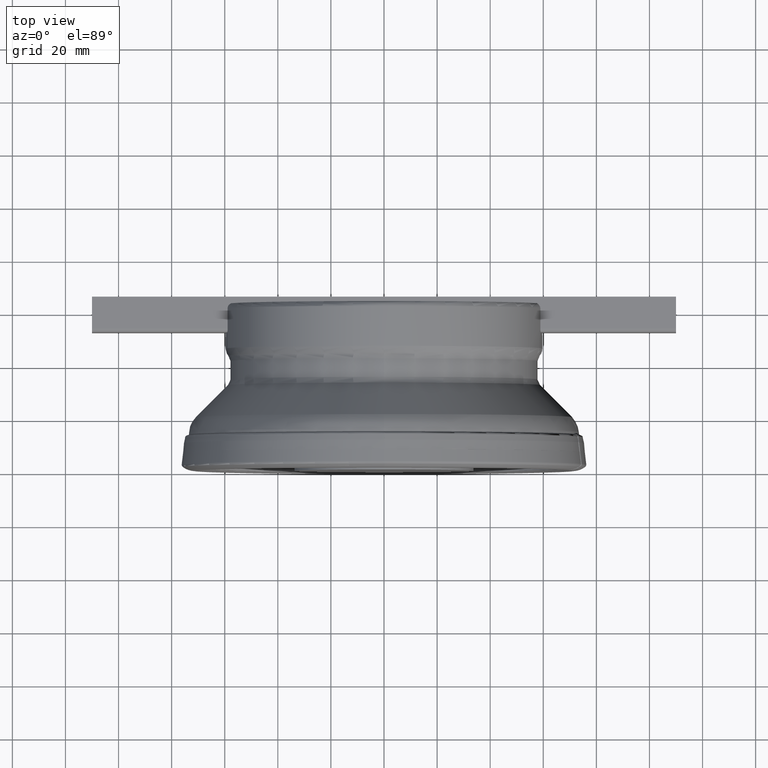
[diagram: clean part render]
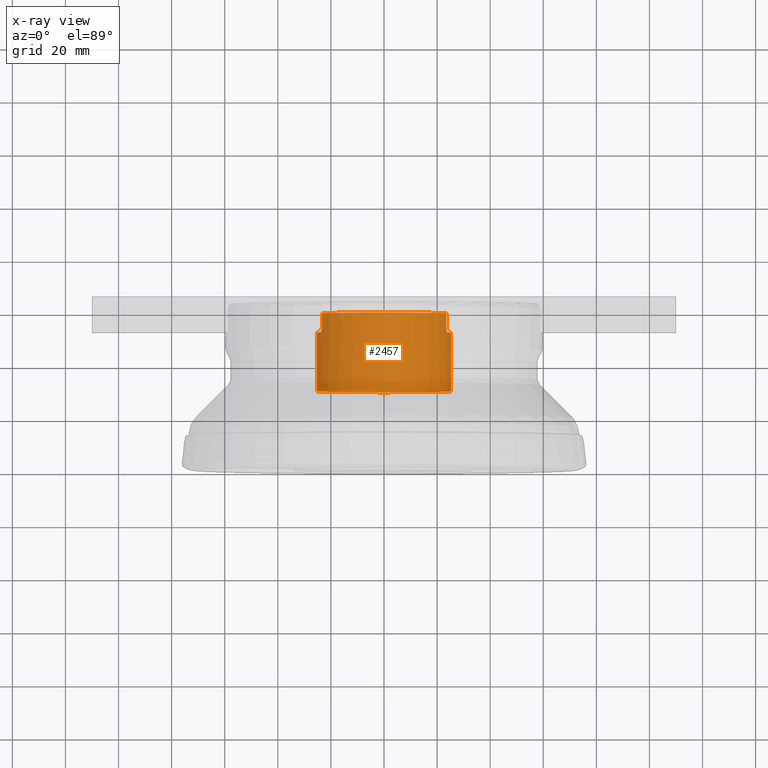
[diagram: x-ray — body ghosted, one internal face saturated and labeled with its STEP entity id]
A machine part, top view, then the same camera in x-ray: the body is ghosted and one INTERNAL B-rep face — a face not visible from any outside direction — is saturated and labeled: STEP entity #2457.
In plain terms, the highlighted cylindrical surface (bore or boss wall) has radius 25.4 mm, axis along (-0, -1, -0).
Its self-contained STEP definition (entity closure, byte-faithful):
#1074=CYLINDRICAL_SURFACE('',#7834,25.4);
#1684=B_SPLINE_CURVE_WITH_KNOTS('',3,(#19231,#19232,#19233,#19234,#19235,
#19236,#19237,#19238,#19239,#19240,#19241,#19242,#19243,#19244,#19245,#19246,
#19247,#19248,#19249),.UNSPECIFIED.,.F.,.F.,(4,3,3,3,3,3,4),(0.,0.0502275320667609,
0.279123687123025,0.511594614678657,0.737316029279921,0.947476441891119,
1.),.UNSPECIFIED.);
#1685=B_SPLINE_CURVE_WITH_KNOTS('',3,(#19253,#19254,#19255,#19256,#19257,
#19258,#19259,#19260,#19261,#19262,#19263,#19264,#19265,#19266,#19267,#19268),
 .UNSPECIFIED.,.F.,.F.,(4,3,3,3,3,4),(0.,0.196683322423464,0.392912196404661,
0.596015192634013,0.813684447285351,1.),.UNSPECIFIED.);
#1686=B_SPLINE_CURVE_WITH_KNOTS('',3,(#19276,#19277,#19278,#19279,#19280,
#19281,#19282,#19283,#19284,#19285,#19286,#19287,#19288,#19289,#19290,#19291),
 .UNSPECIFIED.,.F.,.F.,(4,3,3,3,3,4),(0.,0.202916160364507,0.435221775552951,
0.664508394608846,0.880332442874783,1.),.UNSPECIFIED.);
#1687=B_SPLINE_CURVE_WITH_KNOTS('',3,(#19295,#19296,#19297,#19298,#19299,
#19300,#19301,#19302,#19303,#19304,#19305,#19306,#19307,#19308,#19309,#19310,
#19311,#19312,#19313),.UNSPECIFIED.,.F.,.F.,(4,3,3,3,3,3,4),(0.,0.143666836012173,
0.336061270032126,0.535689817439991,0.74913076314681,0.975929588190963,
1.),.UNSPECIFIED.);
#1827=LINE('',#19229,#1984);
#1828=LINE('',#19270,#1985);
#1829=LINE('',#19274,#1986);
#1830=LINE('',#19315,#1987);
#1984=VECTOR('',#8979,1.);
#1985=VECTOR('',#8982,1.);
#1986=VECTOR('',#8985,1.);
#1987=VECTOR('',#8988,1.);
#2457=ADVANCED_FACE('',(#2679,#2680),#1074,.T.);
#2679=FACE_BOUND('',#3231,.T.);
#2680=FACE_BOUND('',#3232,.T.);
#3231=EDGE_LOOP('',(#5261));
#3232=EDGE_LOOP('',(#5262,#5263,#5264,#5265,#5266,#5267,#5268,#5269,#5270,
#5271,#5272,#5273));
#5261=ORIENTED_EDGE('',*,*,#7029,.F.);
#5262=ORIENTED_EDGE('',*,*,#7030,.T.);
#5263=ORIENTED_EDGE('',*,*,#7031,.T.);
#5264=ORIENTED_EDGE('',*,*,#7032,.F.);
#5265=ORIENTED_EDGE('',*,*,#7033,.T.);
#5266=ORIENTED_EDGE('',*,*,#7034,.F.);
#5267=ORIENTED_EDGE('',*,*,#7035,.T.);
#5268=ORIENTED_EDGE('',*,*,#7036,.T.);
#5269=ORIENTED_EDGE('',*,*,#7037,.T.);
#5270=ORIENTED_EDGE('',*,*,#7038,.F.);
#5271=ORIENTED_EDGE('',*,*,#7039,.T.);
#5272=ORIENTED_EDGE('',*,*,#7040,.F.);
#5273=ORIENTED_EDGE('',*,*,#7041,.T.);
#5995=VERTEX_POINT('',#19225);
#5996=VERTEX_POINT('',#19227);
#5997=VERTEX_POINT('',#19228);
#5998=VERTEX_POINT('',#19230);
#5999=VERTEX_POINT('',#19250);
#6000=VERTEX_POINT('',#19252);
#6001=VERTEX_POINT('',#19269);
#6002=VERTEX_POINT('',#19271);
#6003=VERTEX_POINT('',#19273);
#6004=VERTEX_POINT('',#19275);
#6005=VERTEX_POINT('',#19292);
#6006=VERTEX_POINT('',#19294);
#6007=VERTEX_POINT('',#19314);
#7029=EDGE_CURVE('',#5995,#5995,#7339,.T.);
#7030=EDGE_CURVE('',#5996,#5997,#7340,.T.);
#7031=EDGE_CURVE('',#5997,#5998,#1827,.T.);
#7032=EDGE_CURVE('',#5999,#5998,#1684,.T.);
#7033=EDGE_CURVE('',#5999,#6000,#7341,.T.);
#7034=EDGE_CURVE('',#6001,#6000,#1685,.T.);
#7035=EDGE_CURVE('',#6001,#6002,#1828,.T.);
#7036=EDGE_CURVE('',#6002,#6003,#7342,.T.);
#7037=EDGE_CURVE('',#6003,#6004,#1829,.T.);
#7038=EDGE_CURVE('',#6005,#6004,#1686,.T.);
#7039=EDGE_CURVE('',#6005,#6006,#7343,.T.);
#7040=EDGE_CURVE('',#6007,#6006,#1687,.T.);
#7041=EDGE_CURVE('',#6007,#5996,#1830,.T.);
#7339=CIRCLE('',#7829,25.4);
#7340=CIRCLE('',#7830,25.4);
#7341=CIRCLE('',#7831,25.4);
#7342=CIRCLE('',#7832,25.4);
#7343=CIRCLE('',#7833,25.4);
#7829=AXIS2_PLACEMENT_3D('',#19224,#8975,#8976);
#7830=AXIS2_PLACEMENT_3D('',#19226,#8977,#8978);
#7831=AXIS2_PLACEMENT_3D('',#19251,#8980,#8981);
#7832=AXIS2_PLACEMENT_3D('',#19272,#8983,#8984);
#7833=AXIS2_PLACEMENT_3D('',#19293,#8986,#8987);
#7834=AXIS2_PLACEMENT_3D('',#19316,#8989,#8990);
#8975=DIRECTION('',(-1.,0.,0.));
#8976=DIRECTION('',(0.,0.,1.));
#8977=DIRECTION('',(-1.,0.,0.));
#8978=DIRECTION('',(0.,0.,1.));
#8979=DIRECTION('',(-1.,0.,0.));
#8980=DIRECTION('',(-1.,0.,0.));
#8981=DIRECTION('',(0.,0.,-1.));
#8982=DIRECTION('',(1.,0.,0.));
#8983=DIRECTION('',(-1.,0.,0.));
#8984=DIRECTION('',(0.,0.,1.));
#8985=DIRECTION('',(-1.,0.,0.));
#8986=DIRECTION('',(-1.,0.,0.));
#8987=DIRECTION('',(0.,0.,-1.));
#8988=DIRECTION('',(1.,0.,0.));
#8989=DIRECTION('',(-1.,0.,0.));
#8990=DIRECTION('',(0.,0.,1.));
#19224=CARTESIAN_POINT('',(30.002,0.,0.));
#19225=CARTESIAN_POINT('',(30.002,0.,25.4));
#19226=CARTESIAN_POINT('',(59.2,0.,0.));
#19227=CARTESIAN_POINT('',(59.2,23.4645344083363,-9.725));
#19228=CARTESIAN_POINT('',(59.2,-23.4645344083363,-9.725));
#19229=CARTESIAN_POINT('',(0.,-23.4645344083363,-9.725));
#19230=CARTESIAN_POINT('',(53.6,-23.4645344083363,-9.725));
#19231=CARTESIAN_POINT('',(52.,-24.0654186541602,-8.125));
#19232=CARTESIAN_POINT('',(52.,-24.0514546735748,-8.16635988170636));
#19233=CARTESIAN_POINT('',(52.0016056354057,-24.0373744066402,-8.20771143748766));
#19234=CARTESIAN_POINT('',(52.0048035259024,-24.023235597972,-8.24888788894195));
#19235=CARTESIAN_POINT('',(52.0192523515922,-23.9593531160286,-8.43493283645114));
#19236=CARTESIAN_POINT('',(52.0671769158459,-23.8931279287647,-8.62039973215159));
#19237=CARTESIAN_POINT('',(52.1449503056435,-23.8303986642615,-8.79045502248687));
#19238=CARTESIAN_POINT('',(52.2238560869582,-23.7667560528258,-8.96298634181765));
#19239=CARTESIAN_POINT('',(52.335896994917,-23.7049038662736,-9.12462783509268));
#19240=CARTESIAN_POINT('',(52.472802517969,-23.6516934884016,-9.26052887964287));
#19241=CARTESIAN_POINT('',(52.6056547579475,-23.6000584795809,-9.3924063801368));
#19242=CARTESIAN_POINT('',(52.766190137566,-23.5550984635058,-9.50392536606884));
#19243=CARTESIAN_POINT('',(52.9406796148398,-23.5229501344741,-9.58283971331289));
#19244=CARTESIAN_POINT('',(53.1032768146334,-23.4929928650715,-9.65637567711943));
#19245=CARTESIAN_POINT('',(53.2829751549602,-23.4733696064877,-9.7036693879606));
#19246=CARTESIAN_POINT('',(53.4631488259487,-23.4669636337018,-9.71913668051418));
#19247=CARTESIAN_POINT('',(53.5086190454724,-23.46534696581,-9.72304014312328));
#19248=CARTESIAN_POINT('',(53.5543339130323,-23.4645344083363,-9.725));
#19249=CARTESIAN_POINT('',(53.6,-23.4645344083363,-9.725));
#19250=CARTESIAN_POINT('',(52.,-24.0654186541602,-8.125));
#19251=CARTESIAN_POINT('',(52.,0.,0.));
#19252=CARTESIAN_POINT('',(52.,-24.0654186541602,8.125));
#19253=CARTESIAN_POINT('',(53.6,-23.4645344083363,9.725));
#19254=CARTESIAN_POINT('',(53.4305032900316,-23.4645344083363,9.725));
#19255=CARTESIAN_POINT('',(53.2586735878042,-23.4761130583393,9.69718275439582));
#19256=CARTESIAN_POINT('',(53.0990132151152,-23.4977186550221,9.64454343188038));
#19257=CARTESIAN_POINT('',(52.939560186438,-23.5192961934521,9.59197246977352));
#19258=CARTESIAN_POINT('',(52.7879410957431,-23.5513448736716,9.51341858047291));
#19259=CARTESIAN_POINT('',(52.654989530615,-23.5901874532788,9.41610619731791));
#19260=CARTESIAN_POINT('',(52.517338814371,-23.6304029174483,9.31535432404898));
#19261=CARTESIAN_POINT('',(52.3960871723655,-23.67883689345,9.19205716444849));
#19262=CARTESIAN_POINT('',(52.2986992772802,-23.7307873935857,9.0559223539313));
#19263=CARTESIAN_POINT('',(52.1944174958671,-23.7864153614632,8.91015084361531));
#19264=CARTESIAN_POINT('',(52.1147590885916,-23.8474634393377,8.74592521682069));
#19265=CARTESIAN_POINT('',(52.0647780402269,-23.9085355619428,8.57565899994382));
#19266=CARTESIAN_POINT('',(52.0220265759133,-23.9607738153514,8.43002119656068));
#19267=CARTESIAN_POINT('',(52.,-24.0140709918229,8.27708652197649));
#19268=CARTESIAN_POINT('',(52.,-24.0654186541602,8.125));
#19269=CARTESIAN_POINT('',(53.6,-23.4645344083363,9.725));
#19270=CARTESIAN_POINT('',(3.06730650979536E-15,-23.4645344083363,9.72500000000002));
#19271=CARTESIAN_POINT('',(59.2,-23.4645344083363,9.725));
#19272=CARTESIAN_POINT('',(59.2,0.,0.));
#19273=CARTESIAN_POINT('',(59.2,23.4645344083363,9.725));
#19274=CARTESIAN_POINT('',(3.06730650979536E-15,23.4645344083363,9.72500000000002));
#19275=CARTESIAN_POINT('',(53.6,23.4645344083363,9.725));
#19276=CARTESIAN_POINT('',(52.,24.0654186541602,8.125));
#19277=CARTESIAN_POINT('',(52.,24.0094776321874,8.29069158322661));
#19278=CARTESIAN_POINT('',(52.0262191456779,23.9511641153967,8.4575265100363));
#19279=CARTESIAN_POINT('',(52.0768743335299,23.8943922792123,8.61498796326032));
#19280=CARTESIAN_POINT('',(52.1347995871722,23.8294725118563,8.79504838754584));
#19281=CARTESIAN_POINT('',(52.2264616410132,23.7648318721984,8.96764430286339));
#19282=CARTESIAN_POINT('',(52.3452615192255,23.7070856788989,9.11778967806061));
#19283=CARTESIAN_POINT('',(52.4624166920882,23.6501389432627,9.26585639033731));
#19284=CARTESIAN_POINT('',(52.609702015311,23.5982667787801,9.39645270735102));
#19285=CARTESIAN_POINT('',(52.7751516225935,23.5581428332718,9.49599422110009));
#19286=CARTESIAN_POINT('',(52.9309357273692,23.520362913248,9.58972055785068));
#19287=CARTESIAN_POINT('',(53.1077219297013,23.4919773142019,9.65859793843016));
#19288=CARTESIAN_POINT('',(53.2892938676055,23.4771347873213,9.69454187560971));
#19289=CARTESIAN_POINT('',(53.3911342092446,23.4688098885194,9.71470216515924));
#19290=CARTESIAN_POINT('',(53.4958501253004,23.4645344083363,9.725));
#19291=CARTESIAN_POINT('',(53.6,23.4645344083363,9.725));
#19292=CARTESIAN_POINT('',(52.,24.0654186541602,8.125));
#19293=CARTESIAN_POINT('',(52.,0.,0.));
#19294=CARTESIAN_POINT('',(52.,24.0654186541602,-8.125));
#19295=CARTESIAN_POINT('',(53.6,23.4645344083363,-9.725));
#19296=CARTESIAN_POINT('',(53.4761009280079,23.4645344083363,-9.725));
#19297=CARTESIAN_POINT('',(53.3512596139416,23.4706200241906,-9.71035226971845));
#19298=CARTESIAN_POINT('',(53.2312368741003,23.4823410003693,-9.68192445448604));
#19299=CARTESIAN_POINT('',(53.0704722086158,23.4980406820881,-9.6438467684381));
#19300=CARTESIAN_POINT('',(52.9147951349886,23.5242979362066,-9.57995595872499));
#19301=CARTESIAN_POINT('',(52.7755395953389,23.5580487730049,-9.49622756723531));
#19302=CARTESIAN_POINT('',(52.6310177351473,23.5930759879322,-9.40933276276738));
#19303=CARTESIAN_POINT('',(52.500434082402,23.6369724028574,-9.29900257708292));
#19304=CARTESIAN_POINT('',(52.3920326116329,23.6853141318478,-9.17419721151061));
#19305=CARTESIAN_POINT('',(52.2762080820509,23.7369661802912,-9.04084548985798));
#19306=CARTESIAN_POINT('',(52.1826802308466,23.7949553994189,-8.8876136493601));
#19307=CARTESIAN_POINT('',(52.1172043054805,23.85404034848,-8.72609643844766));
#19308=CARTESIAN_POINT('',(52.0477113347269,23.9167502470286,-8.5546699064607));
#19309=CARTESIAN_POINT('',(52.0079864188527,23.982343788408,-8.36930630072592));
#19310=CARTESIAN_POINT('',(52.0011075041483,24.0452409194826,-8.18452131306653));
#19311=CARTESIAN_POINT('',(52.0003695661421,24.0519882314489,-8.16469843820529));
#19312=CARTESIAN_POINT('',(52.,24.0587162534251,-8.14485182519119));
#19313=CARTESIAN_POINT('',(52.,24.0654186541602,-8.125));
#19314=CARTESIAN_POINT('',(53.6,23.4645344083363,-9.725));
#19315=CARTESIAN_POINT('',(0.,23.4645344083363,-9.725));
#19316=CARTESIAN_POINT('',(0.,0.,0.));